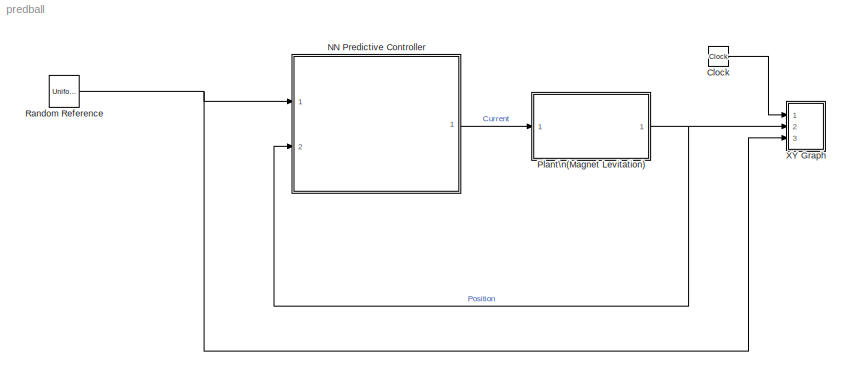
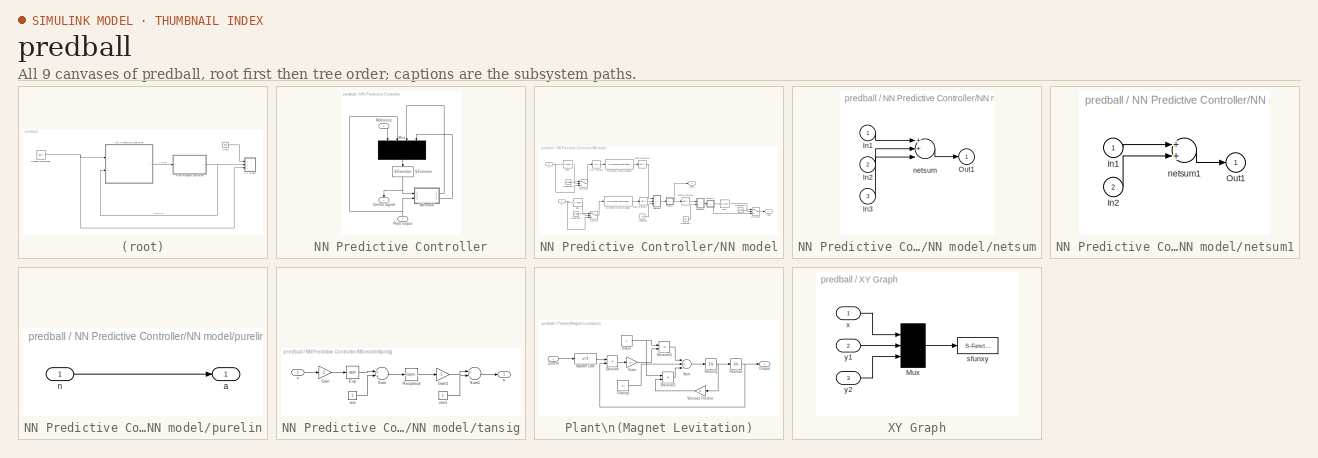
[diagram: thumbnail index - all 9 canvases of the model, root first then tree order]
MODEL predball
KIND model
CONFIG AbsTol = 1e-6
CONFIG FixedStep = 0.01
CONFIG MaxStep = auto
CONFIG MinStep = auto
CONFIG RelTol = 1e-3
CONFIG Solver = ode5
CONFIG SolverMode = SingleTasking
CONFIG StartTime = 0.0
CONFIG StopTime = 30
BLOCK [Clock] Clock
  Decimation = 10
BLOCK [SubSystem] NN Predictive Controller
  MaskCallbackString = |||||||||||||||||||||||||||||||||
  MaskDescription = NN Predictive Controller.  You first train a neural network model of the plant to be controlled.  The controller uses the plant model to predict plant performance over a specified time horizon.  An optimization algorithm determines the control signal that optimizes plant performance over this horizon.  Double click the NN Predictive Controller block to train the plant model and set the controller ...<+11ch>
  MaskDisplay = plot([[xl NaN x2]*.9-.075 ], [[yl  NaN y2]*.9-.1 ]);\nplot([[x3]*.9-.075 ], [[y3]*.9-.1 ]);\ntext(x1t,y1t,'Plant');\ntext(x8t,y8t,'Output');\ntext(x2t,y2t,'Reference');\ntext(x3t,y3t,'Control');\ntext(x4t,y4t,'Signal');\ntext(x5t,y5t,'Optim.');\ntext(x6t,y6t,'NN');\ntext(x7t,y7t,'Model');\n
  MaskEnableString = on,on,on,on,on,on,on,on,on,on,on,on,on,on,on,on,on,on,on,on,on,on,on,on,on,on,on,on,on,on,on,on,on,on
  MaskIconFrame = on
  MaskIconOpaque = on
  MaskIconRotate = none
  MaskIconUnits = normalized
  MaskInitialization = xl = [0   .53   .53     .85   .85  .53  .53  NaN .85  .92 .92];\nyl = [.95 .95 1.05  1.05   .82  .82  .95  NaN  .95 .95 .65];\nx2 = [0 .53    NaN .92 1.2 NaN .53 .85 .85 .53 .53 ];\ny2 = [.39 .39   NaN .65 .65 NaN .59 .59 .29 .29  .59];\nx3 = [.67 .67 NaN .64 .67 .70 NaN .53 .4   .4   .53 NaN .46 .53 .46];\ny3 = [.59 .82 NaN .66 .59 .66 NaN .55 .55 .86 .86 NaN  .89 .86 .83];\n\nx1t=.03; y1t=.31;\n...<+131ch>
  MaskPromptString = N2|Nu|Sample time|rho (typically = 0.03)|alpha (typically = 0.001)|Minimization rutine|maxiter|S1|Ni|Nj|sim_file|Training function|Use_Validation|Use_Testing|max_i|min_i|sam_training|epochs|minp|maxp|mint|maxt|Normalize|IW|LW1_2|LW2_1|B1|B2|max_i_int|min_i_int|limit_output|max_output|min_output|Use_Previous_Weights
  MaskStyleString = edit,edit,edit,edit,edit,popup(csrchgol|csrchbac|csrchhyb|csrchbre|csrchcha),edit,edit,edit,edit,edit,popup(trainbfg|trainbr |traincgb|traincgf|traincgp|traingd|traingdm|traingda|traingdx|trainlm |trainoss|trainrp |trainscg),edit,edit,edit,edit,edit,edit,edit,edit,edit,edit,edit,edit,edit,edit,edit,edit,edit,edit,edit,edit,edit,edit
  MaskToolTipString = on,on,on,on,on,on,on,on,on,on,on,on,on,on,on,on,on,on,on,on,on,on,on,on,on,on,on,on,on,on,on,on,on,on
  MaskTunableValueString = on,on,on,on,on,on,on,on,on,on,on,on,on,on,on,on,on,on,on,on,on,on,on,on,on,on,on,on,on,on,on,on,on,on
  MaskType = NN Predictive Controller
  MaskValueString = 9|2|0.01|0.005|0.001|csrchcha|2|9|3|2|ballrepel0|trainlm |1|0|4|0|10000|200|0.013569924065719701|3.9919475548539087|0.5|4.8553071923405362|0|[6.0992684989626964 -3.4057613377021299 2.8284879191363013;0.0031446091662587555 -0.0023677675323538839 -0.00062304892754021766;0.099266319350885812 0.048519647269651175 0.0025055386954869144;-0.0013445676464647707 0.00036889386984801059 -0.003015916645083162...<+1114ch>
  MaskVarAliasString = ,,,,,,,,,,,,,,,,,,,,,,,,,,,,,,,,,
  MaskVariables = N2=@1;Nu=@2;Ts=@3;rho=@4;alpha=@5;csrchfun=@6;maxiter=@7;S1=@8;Ni=@9;Nj=@10;sim_file=&11;trainfun=@12;Use_validation=@13;Use_Testing=@14;max_i=@15;min_i=@16;sam_training=@17;epochs=@18;minp=@19;maxp=@20;mint=@21;maxt=@22;Normalize=@23;IW=@24;LW1_2=@25;LW2_1=@26;B1=@27;B2=@28;max_i_int=@29;min_i_int=@30;limit_output=@31;max_output=@32;min_output=@33;Use_Previous_Weights=@34;
  MaskVisibilityString = on,on,on,on,on,on,on,on,on,on,on,on,on,on,on,on,on,on,on,on,on,on,on,on,on,on,on,on,on,on,on,on,on,on
  OpenFcn = nncontrolutil('nnpredict','',gcbh,gcb);
  Ports = [2, 1]
  TreatAsAtomicUnit = off
BLOCK [Outport] NN Predictive Controller/Control Signal
BLOCK [Mux] NN Predictive Controller/Mux
  DisplayOption = signals
  Ports = [4, 1]
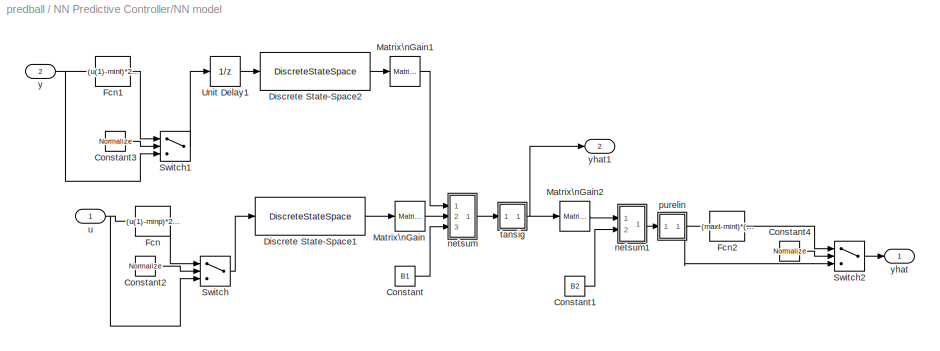
BLOCK [SubSystem] NN Predictive Controller/NN model
  Ports = [2, 2]
  TreatAsAtomicUnit = off
BLOCK [Constant] NN Predictive Controller/NN model/Constant
  Value = B1
BLOCK [Constant] NN Predictive Controller/NN model/Constant1
  Value = B2
BLOCK [Constant] NN Predictive Controller/NN model/Constant2
  Value = Normalize
BLOCK [Constant] NN Predictive Controller/NN model/Constant3
  Value = Normalize
BLOCK [Constant] NN Predictive Controller/NN model/Constant4
  Value = Normalize
BLOCK [DiscreteStateSpace] NN Predictive Controller/NN model/Discrete State-Space1
  A = [zeros(1,Ni-1);eye(Ni-2,Ni-1)] %0 %[0 0;1 0]
  B = eye(Ni-1,1) %1 %[1;0]
  C = [zeros(1,Ni-1);eye(Ni-1,Ni-1)] %[0;1] %[1 0;0 1]
  D = eye(Ni,1)  %[1;0] %[0;0]
  SampleTime = Ts
BLOCK [DiscreteStateSpace] NN Predictive Controller/NN model/Discrete State-Space2
  A = [zeros(1,Nj-1);eye(Nj-2,Nj-1)] %0 %[0 0;1 0]
  B = eye(Nj-1,1) %1 %[1;0]
  C = [zeros(1,Nj-1);eye(Nj-1,Nj-1)] %[0;1] %[1 0;0 1]
  D = eye(Nj,1)  %[1;0] %[0;0]
  SampleTime = Ts
BLOCK [Fcn] NN Predictive Controller/NN model/Fcn
  Expr = (u(1)-minp)*2/(maxp-minp) - 1
BLOCK [Fcn] NN Predictive Controller/NN model/Fcn1
  Expr = (u(1)-mint)*2/(maxt-mint) - 1
BLOCK [Fcn] NN Predictive Controller/NN model/Fcn2
  Expr = (maxt-mint)*(u(1)+1)/2 + mint
BLOCK [Reference] NN Predictive Controller/NN model/Matrix\nGain  REF=simulink3/Math/Matrix\nGain
  K = IW
  Ports = [1, 1]
  SourceBlock = simulink3/Math/Matrix\nGain
  SourceType = Matrix Gain
BLOCK [Reference] NN Predictive Controller/NN model/Matrix\nGain1  REF=simulink3/Math/Matrix\nGain
  K = LW1_2
  Ports = [1, 1]
  SourceBlock = simulink3/Math/Matrix\nGain
  SourceType = Matrix Gain
BLOCK [Reference] NN Predictive Controller/NN model/Matrix\nGain2  REF=simulink3/Math/Matrix\nGain
  K = LW2_1
  Ports = [1, 1]
  SourceBlock = simulink3/Math/Matrix\nGain
  SourceType = Matrix Gain
BLOCK [Switch] NN Predictive Controller/NN model/Switch
  Threshold = 0.5
BLOCK [Switch] NN Predictive Controller/NN model/Switch1
  Threshold = 0.5
BLOCK [Switch] NN Predictive Controller/NN model/Switch2
  Threshold = 0.5
BLOCK [UnitDelay] NN Predictive Controller/NN model/Unit Delay1
  SampleTime = Ts
BLOCK [SubSystem] NN Predictive Controller/NN model/netsum
  MaskDisplay = disp('+')
  MaskIconFrame = on
  MaskIconOpaque = on
  MaskIconRotate = none
  MaskIconUnits = autoscale
  Ports = [3, 1]
  TreatAsAtomicUnit = off
BLOCK [Inport] NN Predictive Controller/NN model/netsum/In1
BLOCK [Inport] NN Predictive Controller/NN model/netsum/In2
  Port = 2
BLOCK [Inport] NN Predictive Controller/NN model/netsum/In3
  Port = 3
BLOCK [Outport] NN Predictive Controller/NN model/netsum/Out1
BLOCK [Sum] NN Predictive Controller/NN model/netsum/netsum
  Inputs = 3
  Ports = [3, 1]
BLOCK [SubSystem] NN Predictive Controller/NN model/netsum1
  MaskDisplay = disp('+')
  MaskIconFrame = on
  MaskIconOpaque = on
  MaskIconRotate = none
  MaskIconUnits = autoscale
  Ports = [2, 1]
  TreatAsAtomicUnit = off
BLOCK [Inport] NN Predictive Controller/NN model/netsum1/In1
BLOCK [Inport] NN Predictive Controller/NN model/netsum1/In2
  Port = 2
BLOCK [Outport] NN Predictive Controller/NN model/netsum1/Out1
BLOCK [Sum] NN Predictive Controller/NN model/netsum1/netsum1
  Inputs = 2
  Ports = [2, 1]
BLOCK [SubSystem] NN Predictive Controller/NN model/purelin
  MaskDisplay = plot([-1 1],[0 0],[-1 1],[-1 1])
  MaskIconFrame = on
  MaskIconOpaque = on
  MaskIconRotate = none
  MaskIconUnits = autoscale
  Ports = [1, 1]
  TreatAsAtomicUnit = off
BLOCK [Outport] NN Predictive Controller/NN model/purelin/a
BLOCK [Inport] NN Predictive Controller/NN model/purelin/n
BLOCK [SubSystem] NN Predictive Controller/NN model/tansig
  MaskDisplay = plot([-1 1],[0 0],[-1 -.9 -.8 -.7 -.6 -.5 -.4 -.3 -.2 -.1 0 .1 .2 .3 .4 .5 .6 .7 .8 .9 1],2./(1+exp(-8*[-1 -.9 -.8 -.7 -.6 -.5 -.4 -.3 -.2 -.1 0 .1 .2 .3 .4 .5 .6 .7 .8 .9 1]))-1)
  MaskIconFrame = on
  MaskIconOpaque = on
  MaskIconRotate = none
  MaskIconUnits = autoscale
  Ports = [1, 1]
  TreatAsAtomicUnit = off
BLOCK [Math] NN Predictive Controller/NN model/tansig/Exp
  MaskIconFrame = on
  MaskIconOpaque = on
  MaskIconRotate = none
  MaskIconUnits = autoscale
  Ports = [1, 1]
BLOCK [Gain] NN Predictive Controller/NN model/tansig/Gain
  Gain = -2
BLOCK [Gain] NN Predictive Controller/NN model/tansig/Gain1
  Gain = 2
BLOCK [Math] NN Predictive Controller/NN model/tansig/Reciprocal
  MaskIconFrame = on
  MaskIconOpaque = on
  MaskIconRotate = none
  MaskIconUnits = autoscale
  Operator = reciprocal
  Ports = [1, 1]
BLOCK [Sum] NN Predictive Controller/NN model/tansig/Sum
  Ports = [2, 1]
BLOCK [Sum] NN Predictive Controller/NN model/tansig/Sum1
  Inputs = +-
  Ports = [2, 1]
BLOCK [Outport] NN Predictive Controller/NN model/tansig/a
BLOCK [Inport] NN Predictive Controller/NN model/tansig/n
BLOCK [Constant] NN Predictive Controller/NN model/tansig/one
BLOCK [Constant] NN Predictive Controller/NN model/tansig/one1
BLOCK [Inport] NN Predictive Controller/NN model/u
BLOCK [Inport] NN Predictive Controller/NN model/y
  Port = 2
BLOCK [Outport] NN Predictive Controller/NN model/yhat
BLOCK [Outport] NN Predictive Controller/NN model/yhat1
  Port = 2
BLOCK [Inport] NN Predictive Controller/Plant output
  Port = 2
BLOCK [Inport] NN Predictive Controller/Reference
BLOCK [S-Function] NN Predictive Controller/S-Function
  FunctionName = predopt
  Parameters = N2,Ts,Nu,maxiter,csrchfun,rho,alpha,S1,IW,LW1_2,LW2_1,B1,B2,Ni,Nj,min_i,max_i,minp,maxp,mint,maxt,Normalize
  Ports = [1, 1]
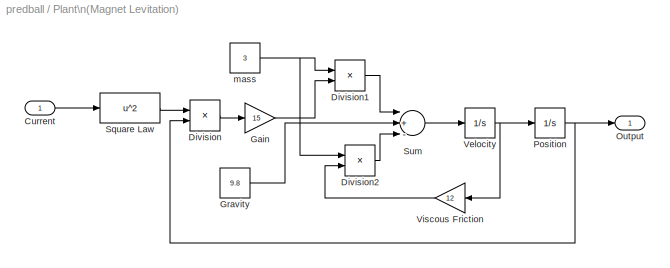
BLOCK [SubSystem] Plant\n(Magnet Levitation)
  MaskDisplay = plot([-10],[0],[10],[5]);\nplot([x1 NaN x2],[y1 NaN y2]);\ntext(x1t,y1t,'N')\ntext(x2t,y2t,'S')
  MaskIconFrame = on
  MaskIconOpaque = on
  MaskIconRotate = none
  MaskIconUnits = autoscale
  MaskInitialization = x1=[-2 -2 2 2 -2 NaN -2 -2 2 2 -2];\ny1=[5 4 4 5 5 NaN 2 0 0 2 2];\nx2=[-2 -2 2 2 -2 NaN -2   2  NaN -2 2 NaN 2    4    NaN 2  4];\ny2=[4  3  3 4  4 NaN 1.5 1  NaN 1 .5 NaN 1.5 1.5 NaN .5 .5];\nx1t = -.5 ; y1t = 4.4;\nx2t = -.5; y2t = 3.4;\n
  Ports = [1, 1]
  TreatAsAtomicUnit = off
BLOCK [Inport] Plant\n(Magnet Levitation)/Current
BLOCK [Product] Plant\n(Magnet Levitation)/Division
  Inputs = */
  Ports = [2, 1]
BLOCK [Product] Plant\n(Magnet Levitation)/Division1
  Inputs = /*
  Ports = [2, 1]
BLOCK [Product] Plant\n(Magnet Levitation)/Division2
  Inputs = /*
  Ports = [2, 1]
BLOCK [Gain] Plant\n(Magnet Levitation)/Gain
  Gain = 15
BLOCK [Constant] Plant\n(Magnet Levitation)/Gravity
  Value = 9.8
BLOCK [Outport] Plant\n(Magnet Levitation)/Output
BLOCK [Integrator] Plant\n(Magnet Levitation)/Position
  InitialCondition = .5
  Ports = [1, 1]
BLOCK [Fcn] Plant\n(Magnet Levitation)/Square Law
  Expr = u^2
BLOCK [Sum] Plant\n(Magnet Levitation)/Sum
  Inputs = |+--
  Ports = [3, 1]
BLOCK [Integrator] Plant\n(Magnet Levitation)/Velocity
  Ports = [1, 1]
BLOCK [Gain] Plant\n(Magnet Levitation)/Viscous Friction
  Gain = 12
BLOCK [Constant] Plant\n(Magnet Levitation)/mass
  Value = 3
BLOCK [UniformRandomNumber] Random Reference
  Maximum = 3
  Minimum = 0.5
  SampleTime = 5
  Seed = round(now)
BLOCK [SubSystem] XY Graph
  CopyFcn = sfunxy2([],[],[],'CopyBlock')
  DeleteFcn = sfunxy2([],[],[],'DeleteBlock')
  LoadFcn = sfunxy2([],[],[],'LoadBlock')
  MaskCallbackString = ||||
  MaskDescription = XY scope using MATLAB graph window.  First input is used as time base.  Enter plotting ranges.
  MaskDisplay = plot([.05 .95 .95 .05 .05],[.45 .45 .95 .95 .45], 0.5+cos(0:0.1:2*pi)*0.3,0.7+sin(0:0.1:2*pi)*0.2)
  MaskEnableString = on,on,on,on,on
  MaskHelp = This block can be used to explore limit cycles. Look at the m-file sfunxy.m to see how it works.
  MaskIconFrame = on
  MaskIconOpaque = on
  MaskIconRotate = none
  MaskIconUnits = normalized
  MaskPromptString = x-min:|x-max:|y-min:|y-max:|Sample time:
  MaskSelfModifiable = on
  MaskStyleString = edit,edit,edit,edit,edit
  MaskToolTipString = on,on,on,on,on
  MaskTunableValueString = on,on,on,on,on
  MaskType = XY scope.
  MaskValueString = 0|5|0|2|-1
  MaskVarAliasString = ,,,,
  MaskVariables = xmin=@1;xmax=@2;ymin=@3;ymax=@4;st=@5;
  MaskVisibilityString = on,on,on,on,on
  NameChangeFcn = sfunxy2([],[],[],'NameChange')
  Ports = [3]
  StartFcn = sfunxy2([],[],[],'Start')
  StopFcn = sfunxy2([],[],[],'Stop')
  TreatAsAtomicUnit = off
BLOCK [Mux] XY Graph/Mux
  Inputs = 3
  Ports = [3, 1]
BLOCK [S-Function] XY Graph/sfunxy
  FunctionName = sfunxy2
  Parameters = [xmin xmax ymin ymax], st
  Ports = [1]
BLOCK [Inport] XY Graph/x
BLOCK [Inport] XY Graph/y1
  Port = 2
BLOCK [Inport] XY Graph/y2
  Port = 3
LINE Clock:1 -> XY Graph:1
LINE NN Predictive Controller/Mux:1 -> NN Predictive Controller/S-Function:1
LINE NN Predictive Controller/NN model/Constant1:1 -> NN Predictive Controller/NN model/netsum1:2
LINE NN Predictive Controller/NN model/Constant2:1 -> NN Predictive Controller/NN model/Switch:2
LINE NN Predictive Controller/NN model/Constant3:1 -> NN Predictive Controller/NN model/Switch1:2
LINE NN Predictive Controller/NN model/Constant4:1 -> NN Predictive Controller/NN model/Switch2:2
LINE NN Predictive Controller/NN model/Constant:1 -> NN Predictive Controller/NN model/netsum:3
LINE NN Predictive Controller/NN model/Discrete State-Space1:1 -> NN Predictive Controller/NN model/Matrix\nGain:1
LINE NN Predictive Controller/NN model/Discrete State-Space2:1 -> NN Predictive Controller/NN model/Matrix\nGain1:1
LINE NN Predictive Controller/NN model/Fcn1:1 -> NN Predictive Controller/NN model/Switch1:1
LINE NN Predictive Controller/NN model/Fcn2:1 -> NN Predictive Controller/NN model/Switch2:1
LINE NN Predictive Controller/NN model/Fcn:1 -> NN Predictive Controller/NN model/Switch:1
LINE NN Predictive Controller/NN model/Matrix\nGain1:1 -> NN Predictive Controller/NN model/netsum:1
LINE NN Predictive Controller/NN model/Matrix\nGain2:1 -> NN Predictive Controller/NN model/netsum1:1
LINE NN Predictive Controller/NN model/Matrix\nGain:1 -> NN Predictive Controller/NN model/netsum:2
LINE NN Predictive Controller/NN model/Switch1:1 -> NN Predictive Controller/NN model/Unit Delay1:1
LINE NN Predictive Controller/NN model/Switch2:1 -> NN Predictive Controller/NN model/yhat:1
LINE NN Predictive Controller/NN model/Switch:1 -> NN Predictive Controller/NN model/Discrete State-Space1:1
LINE NN Predictive Controller/NN model/Unit Delay1:1 -> NN Predictive Controller/NN model/Discrete State-Space2:1
LINE NN Predictive Controller/NN model/netsum/In1:1 -> NN Predictive Controller/NN model/netsum/netsum:1
LINE NN Predictive Controller/NN model/netsum/In2:1 -> NN Predictive Controller/NN model/netsum/netsum:2
LINE NN Predictive Controller/NN model/netsum/In3:1 -> NN Predictive Controller/NN model/netsum/netsum:3
LINE NN Predictive Controller/NN model/netsum/netsum:1 -> NN Predictive Controller/NN model/netsum/Out1:1
LINE NN Predictive Controller/NN model/netsum1/In1:1 -> NN Predictive Controller/NN model/netsum1/netsum1:1
LINE NN Predictive Controller/NN model/netsum1/In2:1 -> NN Predictive Controller/NN model/netsum1/netsum1:2
LINE NN Predictive Controller/NN model/netsum1/netsum1:1 -> NN Predictive Controller/NN model/netsum1/Out1:1
LINE NN Predictive Controller/NN model/netsum1:1 -> NN Predictive Controller/NN model/purelin:1
LINE NN Predictive Controller/NN model/netsum:1 -> NN Predictive Controller/NN model/tansig:1
LINE NN Predictive Controller/NN model/purelin/n:1 -> NN Predictive Controller/NN model/purelin/a:1
NET NN Predictive Controller/NN model/purelin:1 -> NN Predictive Controller/NN model/Fcn2:1, NN Predictive Controller/NN model/Switch2:3
LINE NN Predictive Controller/NN model/tansig/Exp:1 -> NN Predictive Controller/NN model/tansig/Sum:1
LINE NN Predictive Controller/NN model/tansig/Gain1:1 -> NN Predictive Controller/NN model/tansig/Sum1:1
LINE NN Predictive Controller/NN model/tansig/Gain:1 -> NN Predictive Controller/NN model/tansig/Exp:1
LINE NN Predictive Controller/NN model/tansig/Reciprocal:1 -> NN Predictive Controller/NN model/tansig/Gain1:1
LINE NN Predictive Controller/NN model/tansig/Sum1:1 -> NN Predictive Controller/NN model/tansig/a:1
LINE NN Predictive Controller/NN model/tansig/Sum:1 -> NN Predictive Controller/NN model/tansig/Reciprocal:1
LINE NN Predictive Controller/NN model/tansig/n:1 -> NN Predictive Controller/NN model/tansig/Gain:1
LINE NN Predictive Controller/NN model/tansig/one1:1 -> NN Predictive Controller/NN model/tansig/Sum1:2
LINE NN Predictive Controller/NN model/tansig/one:1 -> NN Predictive Controller/NN model/tansig/Sum:2
NET NN Predictive Controller/NN model/tansig:1 -> NN Predictive Controller/NN model/Matrix\nGain2:1, NN Predictive Controller/NN model/yhat1:1
NET NN Predictive Controller/NN model/u:1 -> NN Predictive Controller/NN model/Fcn:1, NN Predictive Controller/NN model/Switch:3
NET NN Predictive Controller/NN model/y:1 -> NN Predictive Controller/NN model/Fcn1:1, NN Predictive Controller/NN model/Switch1:3
LINE NN Predictive Controller/NN model:1 -> NN Predictive Controller/Mux:3
LINE NN Predictive Controller/NN model:2 -> NN Predictive Controller/Mux:4
NET NN Predictive Controller/Plant output:1 -> NN Predictive Controller/Mux:2, NN Predictive Controller/NN model:2
LINE NN Predictive Controller/Reference:1 -> NN Predictive Controller/Mux:1
NET NN Predictive Controller/S-Function:1 -> NN Predictive Controller/Control Signal:1, NN Predictive Controller/NN model:1
LINE NN Predictive Controller:1 -> Plant\n(Magnet Levitation):1
LINE Plant\n(Magnet Levitation)/Current:1 -> Plant\n(Magnet Levitation)/Square Law:1
LINE Plant\n(Magnet Levitation)/Division1:1 -> Plant\n(Magnet Levitation)/Sum:1
LINE Plant\n(Magnet Levitation)/Division2:1 -> Plant\n(Magnet Levitation)/Sum:3
LINE Plant\n(Magnet Levitation)/Division:1 -> Plant\n(Magnet Levitation)/Gain:1
LINE Plant\n(Magnet Levitation)/Gain:1 -> Plant\n(Magnet Levitation)/Division1:2
LINE Plant\n(Magnet Levitation)/Gravity:1 -> Plant\n(Magnet Levitation)/Sum:2
NET Plant\n(Magnet Levitation)/Position:1 -> Plant\n(Magnet Levitation)/Division:2, Plant\n(Magnet Levitation)/Output:1
LINE Plant\n(Magnet Levitation)/Square Law:1 -> Plant\n(Magnet Levitation)/Division:1
LINE Plant\n(Magnet Levitation)/Sum:1 -> Plant\n(Magnet Levitation)/Velocity:1
NET Plant\n(Magnet Levitation)/Velocity:1 -> Plant\n(Magnet Levitation)/Position:1, Plant\n(Magnet Levitation)/Viscous Friction:1
LINE Plant\n(Magnet Levitation)/Viscous Friction:1 -> Plant\n(Magnet Levitation)/Division2:2
NET Plant\n(Magnet Levitation)/mass:1 -> Plant\n(Magnet Levitation)/Division1:1, Plant\n(Magnet Levitation)/Division2:1
NET Plant\n(Magnet Levitation):1 -> NN Predictive Controller:2, XY Graph:2
NET Random Reference:1 -> NN Predictive Controller:1, XY Graph:3
LINE XY Graph/Mux:1 -> XY Graph/sfunxy:1
LINE XY Graph/x:1 -> XY Graph/Mux:1
LINE XY Graph/y1:1 -> XY Graph/Mux:2
LINE XY Graph/y2:1 -> XY Graph/Mux:3
note: NET lines group one-source signal fan-out (src -> all destinations, sorted); 1:1 wires keep LINE
